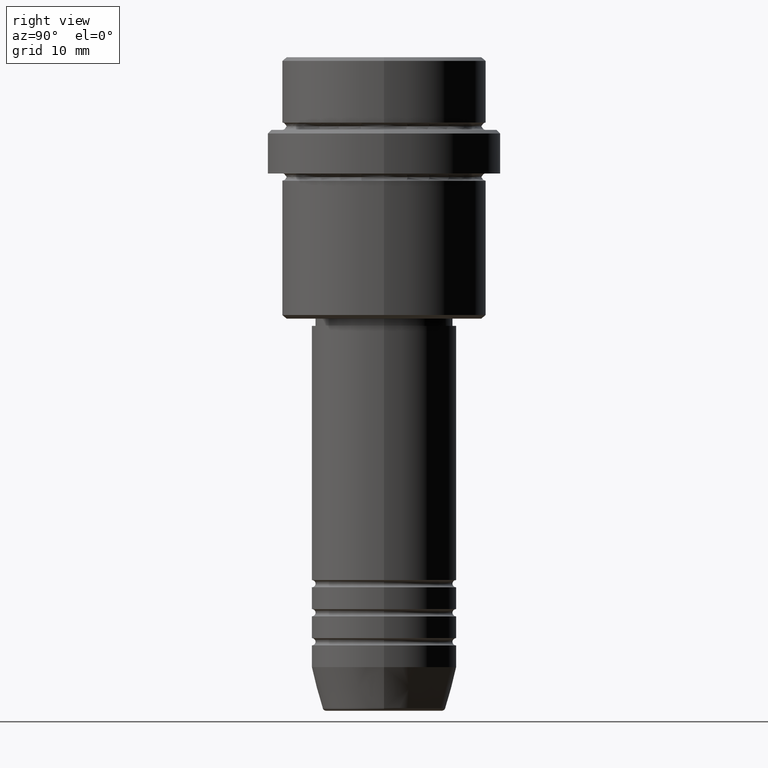
[diagram: clean part render]
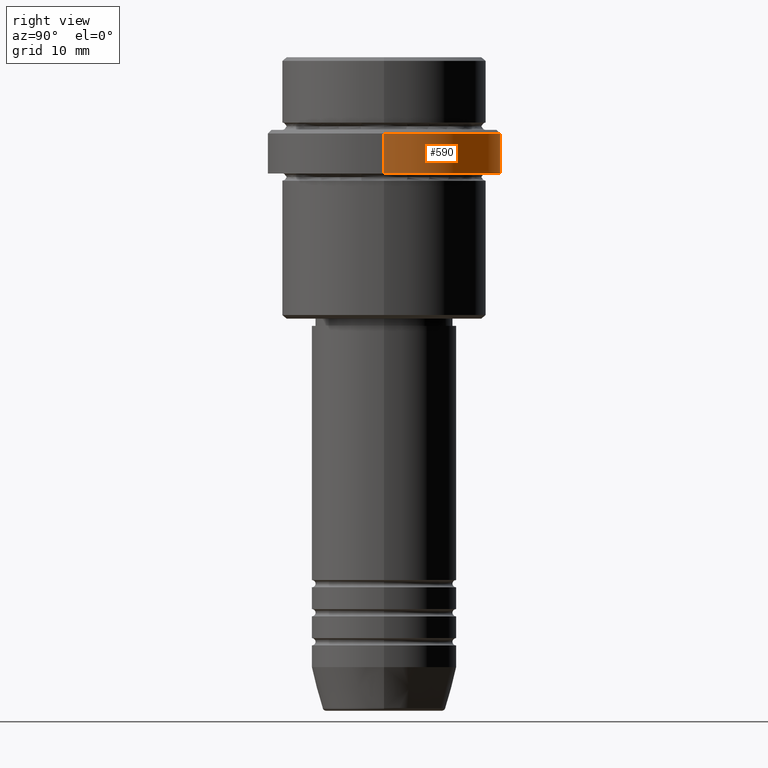
[diagram: same view with one face highlighted and labeled with its STEP entity id]
A machine part, right view. The second image highlights one B-rep face of the part: STEP entity #590.
In plain terms, the highlighted cylindrical surface (partial cylindrical patch) has radius 16 mm, axis along (-0, -0, 1).
Its self-contained STEP definition (entity closure, byte-faithful):
#3 = AXIS2_PLACEMENT_3D ( 'NONE', #1315, #345, #890 ) ;
#41 = VERTEX_POINT ( 'NONE', #992 ) ;
#43 = EDGE_CURVE ( 'NONE', #171, #1226, #1401, .T. ) ;
#78 = EDGE_CURVE ( 'NONE', #171, #1296, #355, .T. ) ;
#109 = CARTESIAN_POINT ( 'NONE',  ( 0.000000000000000000, 0.000000000000000000, 0.000000000000000000 ) ) ;
#147 = VECTOR ( 'NONE', #434, 1000.000000000000000 ) ;
#171 = VERTEX_POINT ( 'NONE', #281 ) ;
#177 = DIRECTION ( 'NONE',  ( 0.000000000000000000, 0.000000000000000000, -1.000000000000000000 ) ) ;
#181 = CARTESIAN_POINT ( 'NONE',  ( -15.99999999999999289, 1.959434878635764343E-15, -16.00000000000000000 ) ) ;
#228 = CARTESIAN_POINT ( 'NONE',  ( 15.99999999999999289, 0.000000000000000000, 0.000000000000000000 ) ) ;
#281 = CARTESIAN_POINT ( 'NONE',  ( 15.99999999999999289, 0.000000000000000000, -16.00000000000000000 ) ) ;
#292 = CIRCLE ( 'NONE', #526, 15.99999999999999289 ) ;
#345 = DIRECTION ( 'NONE',  ( -0.000000000000000000, -0.000000000000000000, 1.000000000000000000 ) ) ;
#353 = VECTOR ( 'NONE', #585, 1000.000000000000000 ) ;
#355 = LINE ( 'NONE', #228, #147 ) ;
#383 = ORIENTED_EDGE ( 'NONE', *, *, #43, .T. ) ;
#434 = DIRECTION ( 'NONE',  ( -0.000000000000000000, -0.000000000000000000, 1.000000000000000000 ) ) ;
#508 = DIRECTION ( 'NONE',  ( 1.000000000000000000, 0.000000000000000000, 0.000000000000000000 ) ) ;
#513 = FACE_OUTER_BOUND ( 'NONE', #1172, .T. ) ;
#526 = AXIS2_PLACEMENT_3D ( 'NONE', #1035, #177, #603 ) ;
#544 = EDGE_CURVE ( 'NONE', #41, #1296, #292, .T. ) ;
#545 = CARTESIAN_POINT ( 'NONE',  ( 15.99999999999999289, 0.000000000000000000, -10.49999999999998224 ) ) ;
#585 = DIRECTION ( 'NONE',  ( -0.000000000000000000, -0.000000000000000000, 1.000000000000000000 ) ) ;
#590 = ADVANCED_FACE ( 'NONE', ( #513 ), #738, .T. ) ;
#603 = DIRECTION ( 'NONE',  ( 1.000000000000000000, 0.000000000000000000, 0.000000000000000000 ) ) ;
#668 = ORIENTED_EDGE ( 'NONE', *, *, #78, .F. ) ;
#738 = CYLINDRICAL_SURFACE ( 'NONE', #874, 15.99999999999999289 ) ;
#811 = ORIENTED_EDGE ( 'NONE', *, *, #544, .T. ) ;
#874 = AXIS2_PLACEMENT_3D ( 'NONE', #109, #1291, #508 ) ;
#878 = EDGE_CURVE ( 'NONE', #1226, #41, #1223, .T. ) ;
#890 = DIRECTION ( 'NONE',  ( 1.000000000000000000, 0.000000000000000000, 0.000000000000000000 ) ) ;
#957 = ORIENTED_EDGE ( 'NONE', *, *, #878, .T. ) ;
#992 = CARTESIAN_POINT ( 'NONE',  ( -15.99999999999999289, 1.959434878635764343E-15, -10.49999999999998224 ) ) ;
#1035 = CARTESIAN_POINT ( 'NONE',  ( 0.000000000000000000, 0.000000000000000000, -10.49999999999998224 ) ) ;
#1151 = CARTESIAN_POINT ( 'NONE',  ( -15.99999999999999289, 1.959434878635764343E-15, 0.000000000000000000 ) ) ;
#1172 = EDGE_LOOP ( 'NONE', ( #383, #957, #811, #668 ) ) ;
#1223 = LINE ( 'NONE', #1151, #353 ) ;
#1226 = VERTEX_POINT ( 'NONE', #181 ) ;
#1291 = DIRECTION ( 'NONE',  ( -0.000000000000000000, -0.000000000000000000, 1.000000000000000000 ) ) ;
#1296 = VERTEX_POINT ( 'NONE', #545 ) ;
#1315 = CARTESIAN_POINT ( 'NONE',  ( 0.000000000000000000, 0.000000000000000000, -16.00000000000000000 ) ) ;
#1401 = CIRCLE ( 'NONE', #3, 15.99999999999999289 ) ;